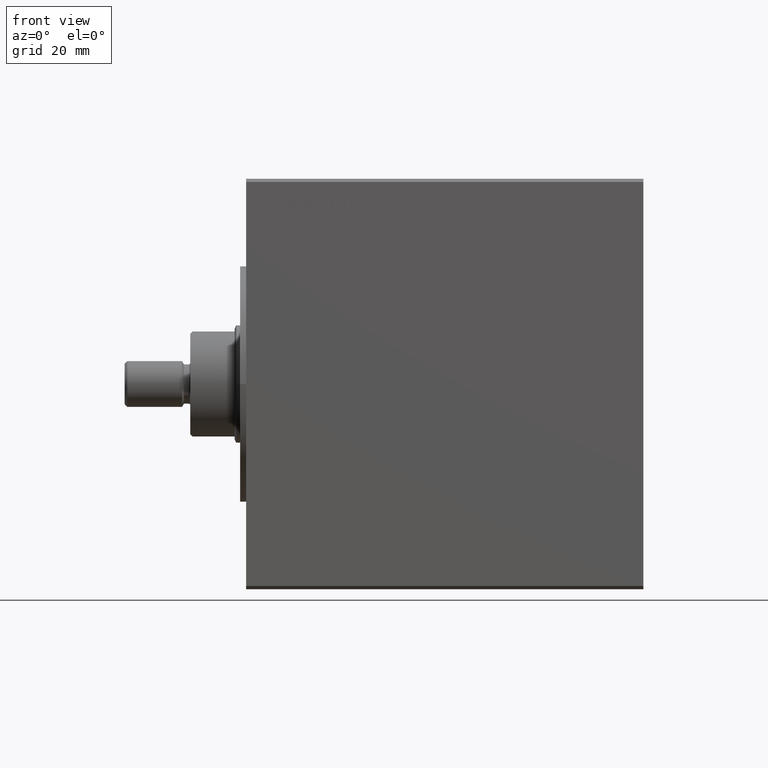
[diagram: clean part render]
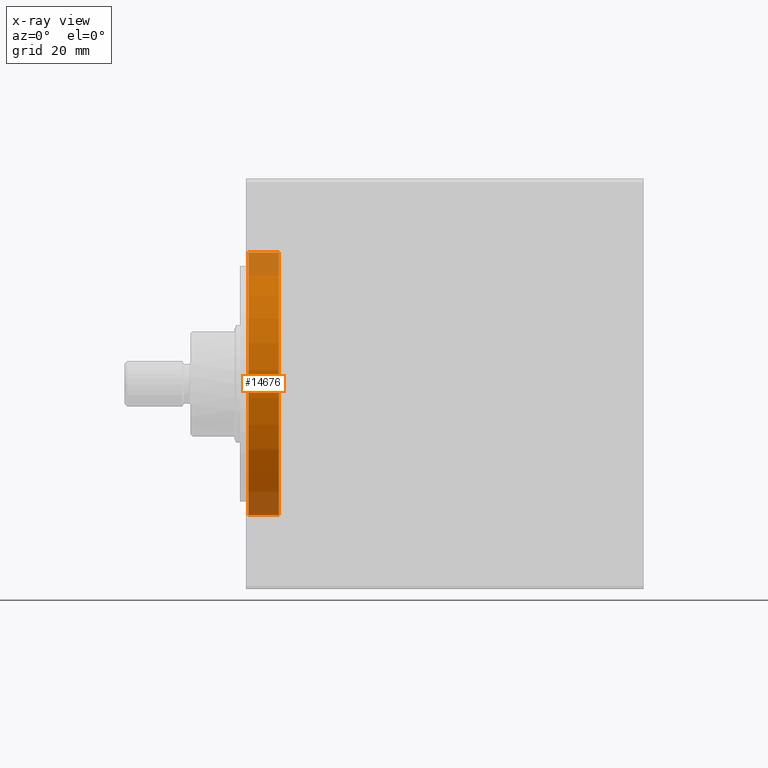
[diagram: x-ray — body ghosted, one internal face saturated and labeled with its STEP entity id]
A machine part, front view, then the same camera in x-ray: the body is ghosted and one INTERNAL B-rep face — a face not visible from any outside direction — is saturated and labeled: STEP entity #14676.
In plain terms, the highlighted cylindrical surface (partial cylindrical patch) has radius 40 mm, axis along (-1, -0, -0).
Its self-contained STEP definition (entity closure, byte-faithful):
#790 = CARTESIAN_POINT ( 'NONE',  ( 0.7000000000000130562, 4.898587196589413026E-15, -40.00000000000000000 ) ) ;
#1456 = CARTESIAN_POINT ( 'NONE',  ( 10.00000000000000000, 0.000000000000000000, 40.00000000000000000 ) ) ;
#4176 = ORIENTED_EDGE ( 'NONE', *, *, #37047, .T. ) ;
#6836 = VERTEX_POINT ( 'NONE', #1456 ) ;
#7999 = EDGE_LOOP ( 'NONE', ( #11906, #34450, #4176, #37764 ) ) ;
#9727 = CARTESIAN_POINT ( 'NONE',  ( 10.00000000000000000, 0.000000000000000000, 0.000000000000000000 ) ) ;
#9925 = VERTEX_POINT ( 'NONE', #790 ) ;
#10549 = AXIS2_PLACEMENT_3D ( 'NONE', #15740, #22717, #15964 ) ;
#11906 = ORIENTED_EDGE ( 'NONE', *, *, #15417, .F. ) ;
#12283 = CARTESIAN_POINT ( 'NONE',  ( 10.00000000000000000, 4.898587196589413026E-15, -40.00000000000000000 ) ) ;
#14676 = ADVANCED_FACE ( 'NONE', ( #22057 ), #35695, .F. ) ;
#15417 = EDGE_CURVE ( 'NONE', #26039, #6836, #28477, .T. ) ;
#15740 = CARTESIAN_POINT ( 'NONE',  ( 10.00000000000000000, 0.000000000000000000, 0.000000000000000000 ) ) ;
#15964 = DIRECTION ( 'NONE',  ( 0.000000000000000000, 0.000000000000000000, 1.000000000000000000 ) ) ;
#18737 = EDGE_CURVE ( 'NONE', #6836, #24428, #33955, .T. ) ;
#20056 = DIRECTION ( 'NONE',  ( -1.000000000000000000, 0.000000000000000000, 0.000000000000000000 ) ) ;
#20557 = CARTESIAN_POINT ( 'NONE',  ( 0.7000000000000130562, 0.000000000000000000, 40.00000000000000000 ) ) ;
#20618 = AXIS2_PLACEMENT_3D ( 'NONE', #9727, #20056, #30345 ) ;
#22057 = FACE_OUTER_BOUND ( 'NONE', #7999, .T. ) ;
#22717 = DIRECTION ( 'NONE',  ( -1.000000000000000000, -0.000000000000000000, -0.000000000000000000 ) ) ;
#23960 = CIRCLE ( 'NONE', #26786, 40.00000000000000000 ) ;
#24428 = VERTEX_POINT ( 'NONE', #20557 ) ;
#25384 = VECTOR ( 'NONE', #42334, 1000.000000000000000 ) ;
#26039 = VERTEX_POINT ( 'NONE', #39827 ) ;
#26140 = DIRECTION ( 'NONE',  ( 0.000000000000000000, 0.000000000000000000, -1.000000000000000000 ) ) ;
#26786 = AXIS2_PLACEMENT_3D ( 'NONE', #33064, #32853, #26140 ) ;
#28477 = CIRCLE ( 'NONE', #20618, 40.00000000000000000 ) ;
#29934 = CARTESIAN_POINT ( 'NONE',  ( 10.00000000000000000, 0.000000000000000000, 40.00000000000000000 ) ) ;
#30345 = DIRECTION ( 'NONE',  ( 0.000000000000000000, 0.000000000000000000, 1.000000000000000000 ) ) ;
#32853 = DIRECTION ( 'NONE',  ( -1.000000000000000000, 0.000000000000000000, 0.000000000000000000 ) ) ;
#33064 = CARTESIAN_POINT ( 'NONE',  ( 0.7000000000000130562, 0.000000000000000000, 0.000000000000000000 ) ) ;
#33955 = LINE ( 'NONE', #29934, #37724 ) ;
#34450 = ORIENTED_EDGE ( 'NONE', *, *, #42106, .T. ) ;
#35376 = LINE ( 'NONE', #12283, #25384 ) ;
#35695 = CYLINDRICAL_SURFACE ( 'NONE', #10549, 40.00000000000000000 ) ;
#36641 = DIRECTION ( 'NONE',  ( -1.000000000000000000, -0.000000000000000000, -0.000000000000000000 ) ) ;
#37047 = EDGE_CURVE ( 'NONE', #9925, #24428, #23960, .T. ) ;
#37724 = VECTOR ( 'NONE', #36641, 1000.000000000000000 ) ;
#37764 = ORIENTED_EDGE ( 'NONE', *, *, #18737, .F. ) ;
#39827 = CARTESIAN_POINT ( 'NONE',  ( 10.00000000000000000, 4.898587196589413026E-15, -40.00000000000000000 ) ) ;
#42106 = EDGE_CURVE ( 'NONE', #26039, #9925, #35376, .T. ) ;
#42334 = DIRECTION ( 'NONE',  ( -1.000000000000000000, -0.000000000000000000, -0.000000000000000000 ) ) ;